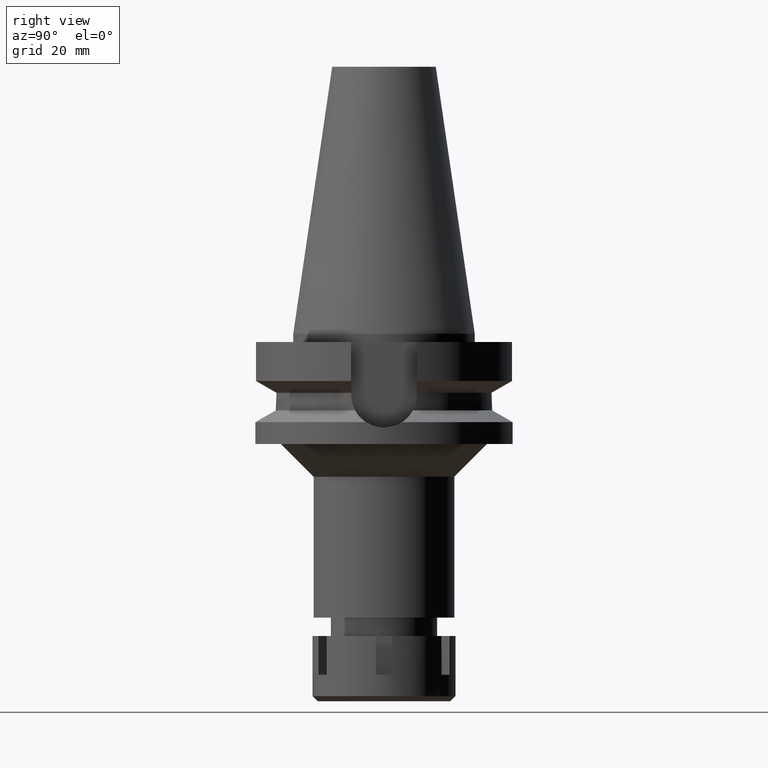
[diagram: clean part render]
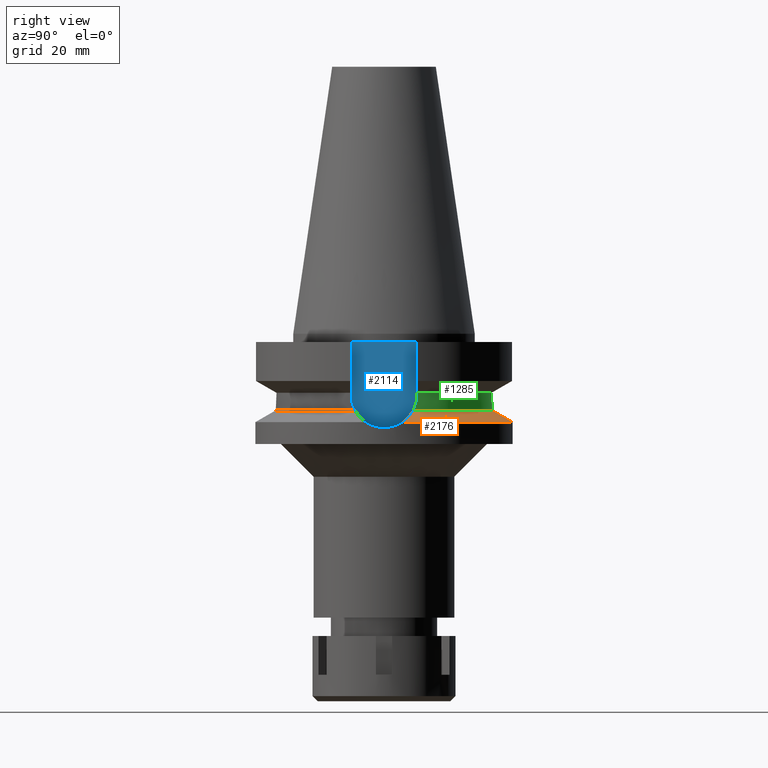
[diagram: same view with three faces highlighted in distinct colors, each labeled with its STEP entity id]
A machine part, right view with three faces highlighted in distinct colors.
Their STEP definitions:

[orange] entity #2176 — the highlighted conical surface has half-angle 60 deg.
#49 = CARTESIAN_POINT ( 'NONE',  ( 28.33576190365653602, 6.118952920167563647, -20.18367862166498128 ) ) ;
#53 = EDGE_CURVE ( 'NONE', #3149, #1249, #1803, .T. ) ;
#98 = CARTESIAN_POINT ( 'NONE',  ( -27.80186762477991280, 6.340377823589463446, -19.91138290903389674 ) ) ;
#107 = CARTESIAN_POINT ( 'NONE',  ( 26.57774612723526886, 6.789747863962931618, -19.28470094419398251 ) ) ;
#332 = EDGE_CURVE ( 'NONE', #1718, #3149, #2211, .T. ) ;
#333 = CARTESIAN_POINT ( 'NONE',  ( -26.79449840290805795, 6.719479771365198140, -19.39575631949134760 ) ) ;
#351 = CARTESIAN_POINT ( 'NONE',  ( -29.08039899030497466, 5.770905817290205242, -20.56470933253821443 ) ) ;
#356 = CARTESIAN_POINT ( 'NONE',  ( 27.17312161670360737, 6.579079804469921910, -19.58936385155902116 ) ) ;
#372 = CARTESIAN_POINT ( 'NONE',  ( 27.47007354294532888, 6.468969421279594734, -19.74117607088250637 ) ) ;
#384 = CARTESIAN_POINT ( 'NONE',  ( -31.17899877608999759, 4.485536235554000051, -21.63449434733000132 ) ) ;
#413 = CARTESIAN_POINT ( 'NONE',  ( 26.07031456688196869, 6.949820554499762437, -19.02442821806057793 ) ) ;
#608 = CARTESIAN_POINT ( 'NONE',  ( -27.56759267384783740, 6.431641194127356798, -19.79151494877947215 ) ) ;
#670 = CARTESIAN_POINT ( 'NONE',  ( 0.0000000000000000000, 31.50000000000000000, -21.63449434733000132 ) ) ;
#678 = CARTESIAN_POINT ( 'NONE',  ( 27.55500421879584039, 6.436577756468227385, -19.78457255022186700 ) ) ;
#699 = AXIS2_PLACEMENT_3D ( 'NONE', #2291, #3087, #1401 ) ;
#728 = DIRECTION ( 'NONE',  ( -0.9898094849552905306, 0.1423979757318985240, 0.0000000000000000000 ) ) ;
#775 = DIRECTION ( 'NONE',  ( 0.0000000000000000000, 0.0000000000000000000, -1.000000000000000000 ) ) ;
#827 = DIRECTION ( 'NONE',  ( 0.0000000000000000000, -1.000000000000000000, 0.0000000000000000000 ) ) ;
#864 = DIRECTION ( 'NONE',  ( 0.0000000000000000000, 1.000000000000000000, 0.0000000000000000000 ) ) ;
#896 = CARTESIAN_POINT ( 'NONE',  ( 27.64236843396722776, 6.402998594508449770, -19.82921396242459977 ) ) ;
#911 = CARTESIAN_POINT ( 'NONE',  ( -26.19531547329091481, 6.915459947307001976, -19.08864711216948251 ) ) ;
#920 = CARTESIAN_POINT ( 'NONE',  ( 27.50572643252157334, 6.455404868141973118, -19.75939378760664411 ) ) ;
#935 = ORIENTED_EDGE ( 'NONE', *, *, #2064, .F. ) ;
#954 = CARTESIAN_POINT ( 'NONE',  ( 27.72878252125778431, 6.369052005182277654, -19.87337822774047424 ) ) ;
#996 = VERTEX_POINT ( 'NONE', #670 ) ;
#1058 = ORIENTED_EDGE ( 'NONE', *, *, #1101, .T. ) ;
#1101 = EDGE_CURVE ( 'NONE', #3222, #1249, #3304, .T. ) ;
#1160 = CIRCLE ( 'NONE', #2115, 31.50000000000001421 ) ;
#1173 = CARTESIAN_POINT ( 'NONE',  ( -29.92556320744147058, 5.316957789776223464, -20.99587040959849915 ) ) ;
#1176 = CARTESIAN_POINT ( 'NONE',  ( 25.53175183775000079, 7.097862220092999941, -18.74774300138999905 ) ) ;
#1177 = CARTESIAN_POINT ( 'NONE',  ( 27.52873794657156736, 6.446629276227584526, -19.77115154444355838 ) ) ;
#1228 = CARTESIAN_POINT ( 'NONE',  ( -27.46559892626379451, 6.470389083415211573, -19.73931484843593154 ) ) ;
#1231 = ORIENTED_EDGE ( 'NONE', *, *, #1933, .F. ) ;
#1249 = VERTEX_POINT ( 'NONE', #2183 ) ;
#1401 = DIRECTION ( 'NONE',  ( 0.0000000000000000000, 1.000000000000000000, 0.0000000000000000000 ) ) ;
#1441 = DIRECTION ( 'NONE',  ( 0.0000000000000000000, 0.0000000000000000000, 1.000000000000000000 ) ) ;
#1502 = CARTESIAN_POINT ( 'NONE',  ( -30.86112095437446001, 4.726700172098827757, -21.47266466809871943 ) ) ;
#1692 = FACE_OUTER_BOUND ( 'NONE', #3246, .T. ) ;
#1718 = VERTEX_POINT ( 'NONE', #2918 ) ;
#1776 = CARTESIAN_POINT ( 'NONE',  ( -29.29923135089809350, 5.659886606404718634, -20.67639207655642508 ) ) ;
#1803 = CIRCLE ( 'NONE', #2812, 26.50000000000000000 ) ;
#1933 = EDGE_CURVE ( 'NONE', #3222, #996, #1160, .T. ) ;
#1950 = ORIENTED_EDGE ( 'NONE', *, *, #53, .F. ) ;
#2013 = AXIS2_PLACEMENT_3D ( 'NONE', #3431, #2261, #827 ) ;
#2035 = CARTESIAN_POINT ( 'NONE',  ( 27.51997238758606557, 6.449975439386931519, -19.76667286072096985 ) ) ;
#2064 = EDGE_CURVE ( 'NONE', #996, #1718, #3237, .T. ) ;
#2073 = CARTESIAN_POINT ( 'NONE',  ( 30.47180014825964278, 5.022065660879547089, -21.27446379697471102 ) ) ;
#2091 = CARTESIAN_POINT ( 'NONE',  ( 31.17899877608999759, 4.485536235554000051, -21.63449434733000132 ) ) ;
#2115 = AXIS2_PLACEMENT_3D ( 'NONE', #3306, #775, #728 ) ;
#2176 = ADVANCED_FACE ( 'NONE', ( #1692 ), #3608, .T. ) ;
#2183 = CARTESIAN_POINT ( 'NONE',  ( -25.53175183775000079, 7.097862220092999941, -18.74774300138999905 ) ) ;
#2211 = B_SPLINE_CURVE_WITH_KNOTS ( 'NONE', 3,
 ( #2091, #2073, #3436, #49, #3191, #954, #896, #678, #1177, #2035, #920, #372, #2644, #356, #107, #413, #2320 ),
 .UNSPECIFIED., .F., .F.,
 ( 4, 2, 2, 1, 2, 2, 1, 1, 2, 4 ),
 ( 0.0000000000000000000, 0.4999999999999951150, 0.6249999999999935607, 0.6562499999999933387, 0.6640624999999938938, 0.6679687499999940048, 0.6718749999999942268, 0.6874999999999946709, 0.7499999999999962252, 1.000000000000000000 ),
 .UNSPECIFIED. ) ;
#2261 = DIRECTION ( 'NONE',  ( 0.0000000000000000000, 0.0000000000000000000, -1.000000000000000000 ) ) ;
#2291 = CARTESIAN_POINT ( 'NONE',  ( 0.0000000000000000000, 0.0000000000000000000, -21.63449434733000132 ) ) ;
#2315 = CARTESIAN_POINT ( 'NONE',  ( -25.53175183775000079, 7.097862220092999941, -18.74774300138999905 ) ) ;
#2320 = CARTESIAN_POINT ( 'NONE',  ( 25.53175183775000079, 7.097862220092999941, -18.74774300138999905 ) ) ;
#2372 = CARTESIAN_POINT ( 'NONE',  ( -27.39725008733112332, 6.496136476950510996, -19.70433075545637891 ) ) ;
#2600 = ORIENTED_EDGE ( 'NONE', *, *, #332, .F. ) ;
#2638 = CARTESIAN_POINT ( 'NONE',  ( -28.37664392056703733, 6.100223205339371901, -20.20526077228979389 ) ) ;
#2644 = CARTESIAN_POINT ( 'NONE',  ( 27.31953336650986230, 6.525749808424447629, -19.66424084977510844 ) ) ;
#2812 = AXIS2_PLACEMENT_3D ( 'NONE', #3128, #1441, #864 ) ;
#2862 = CARTESIAN_POINT ( 'NONE',  ( -27.36173902296902583, 6.509397576646960282, -19.68615276734225716 ) ) ;
#2881 = CARTESIAN_POINT ( 'NONE',  ( -29.72262444886788657, 5.432525444494295641, -20.89238680110177881 ) ) ;
#2918 = CARTESIAN_POINT ( 'NONE',  ( 31.17899877608999759, 4.485536235554000051, -21.63449434733000132 ) ) ;
#3087 = DIRECTION ( 'NONE',  ( 0.0000000000000000000, 0.0000000000000000000, -1.000000000000000000 ) ) ;
#3128 = CARTESIAN_POINT ( 'NONE',  ( 0.0000000000000000000, 0.0000000000000000000, -18.74774300138999905 ) ) ;
#3138 = CARTESIAN_POINT ( 'NONE',  ( -31.17899877608999759, 4.485536235554000051, -21.63449434733000132 ) ) ;
#3149 = VERTEX_POINT ( 'NONE', #1176 ) ;
#3191 = CARTESIAN_POINT ( 'NONE',  ( 28.07139846120139026, 6.232128727978550664, -20.04849952511425215 ) ) ;
#3222 = VERTEX_POINT ( 'NONE', #3138 ) ;
#3237 = CIRCLE ( 'NONE', #699, 31.50000000000000000 ) ;
#3246 = EDGE_LOOP ( 'NONE', ( #1950, #2600, #935, #1231, #1058 ) ) ;
#3304 = B_SPLINE_CURVE_WITH_KNOTS ( 'NONE', 3,
 ( #384, #1502, #3454, #1173, #2881, #1776, #351, #3414, #2638, #3490, #98, #608, #1228, #2372, #2862, #333, #911, #2315 ),
 .UNSPECIFIED., .F., .F.,
 ( 4, 2, 2, 2, 2, 1, 1, 2, 2, 4 ),
 ( 0.0000000000000000000, 0.2499999999999970579, 0.3749999999999948375, 0.4999999999999925615, 0.6249999999999903411, 0.6874999999999892308, 0.7187499999999890088, 0.7343749999999896749, 0.7499999999999904521, 1.000000000000000000 ),
 .UNSPECIFIED. ) ;
#3306 = CARTESIAN_POINT ( 'NONE',  ( 0.0000000000000000000, 0.0000000000000000000, -21.63449434733000132 ) ) ;
#3414 = CARTESIAN_POINT ( 'NONE',  ( -28.61883714100519782, 5.991211994617476222, -20.32900284882830277 ) ) ;
#3431 = CARTESIAN_POINT ( 'NONE',  ( 0.0000000000000000000, 0.0000000000000000000, -20.19111867435999841 ) ) ;
#3436 = CARTESIAN_POINT ( 'NONE',  ( 29.60893256843363019, 5.537338110139335079, -20.83455730871934009 ) ) ;
#3454 = CARTESIAN_POINT ( 'NONE',  ( -30.50800601667560130, 4.966106917569513612, -21.29277997376089004 ) ) ;
#3490 = CARTESIAN_POINT ( 'NONE',  ( -27.99630131452716952, 6.260814675578851407, -20.01081440545673829 ) ) ;
#3608 = CONICAL_SURFACE ( 'NONE', #2013, 29.00000000000000000, 1.047197551196400456 ) ;

[blue] entity #2114 — the highlighted planar face has unit normal (1, 0, 0).
#189 = ORIENTED_EDGE ( 'NONE', *, *, #2267, .F. ) ;
#279 = FACE_OUTER_BOUND ( 'NONE', #1671, .T. ) ;
#292 = VECTOR ( 'NONE', #2262, 1000.000000000000000 ) ;
#334 = DIRECTION ( 'NONE',  ( 0.0000000000000000000, 1.000000000000000000, 0.0000000000000000000 ) ) ;
#412 = CARTESIAN_POINT ( 'NONE',  ( 22.50000000000000000, -8.050000000000000711, -14.94999999999999929 ) ) ;
#543 = CARTESIAN_POINT ( 'NONE',  ( 22.50000000000000000, 8.050000000000000711, -2.000000000000000000 ) ) ;
#588 = VERTEX_POINT ( 'NONE', #2760 ) ;
#760 = VECTOR ( 'NONE', #984, 1000.000000000000000 ) ;
#843 = LINE ( 'NONE', #1085, #292 ) ;
#893 = CARTESIAN_POINT ( 'NONE',  ( 22.50000000000000000, 0.0000000000000000000, 0.0000000000000000000 ) ) ;
#933 = DIRECTION ( 'NONE',  ( 0.0000000000000000000, 1.000000000000000000, 0.0000000000000000000 ) ) ;
#984 = DIRECTION ( 'NONE',  ( 0.0000000000000000000, 0.0000000000000000000, 1.000000000000000000 ) ) ;
#1009 = EDGE_CURVE ( 'NONE', #2184, #3305, #3522, .T. ) ;
#1085 = CARTESIAN_POINT ( 'NONE',  ( 22.50000000000000000, 8.050000000000000711, -2.000000000000000000 ) ) ;
#1107 = ORIENTED_EDGE ( 'NONE', *, *, #3569, .T. ) ;
#1384 = CARTESIAN_POINT ( 'NONE',  ( 22.50000000000000000, 8.050000000000000711, -14.94999999999999929 ) ) ;
#1434 = PLANE ( 'NONE',  #1537 ) ;
#1484 = ORIENTED_EDGE ( 'NONE', *, *, #1009, .F. ) ;
#1537 = AXIS2_PLACEMENT_3D ( 'NONE', #893, #2571, #334 ) ;
#1671 = EDGE_LOOP ( 'NONE', ( #189, #1484, #1991, #1107 ) ) ;
#1938 = AXIS2_PLACEMENT_3D ( 'NONE', #3473, #2927, #933 ) ;
#1991 = ORIENTED_EDGE ( 'NONE', *, *, #2077, .F. ) ;
#2015 = LINE ( 'NONE', #3152, #3130 ) ;
#2077 = EDGE_CURVE ( 'NONE', #3063, #2184, #2015, .T. ) ;
#2114 = ADVANCED_FACE ( 'NONE', ( #279 ), #1434, .T. ) ;
#2184 = VERTEX_POINT ( 'NONE', #1384 ) ;
#2262 = DIRECTION ( 'NONE',  ( 0.0000000000000000000, -1.000000000000000000, 0.0000000000000000000 ) ) ;
#2267 = EDGE_CURVE ( 'NONE', #3305, #588, #3170, .T. ) ;
#2571 = DIRECTION ( 'NONE',  ( 1.000000000000000000, 0.0000000000000000000, 0.0000000000000000000 ) ) ;
#2760 = CARTESIAN_POINT ( 'NONE',  ( 22.50000000000000000, -8.050000000000000711, -2.000000000000000000 ) ) ;
#2927 = DIRECTION ( 'NONE',  ( -1.000000000000000000, 0.0000000000000000000, 0.0000000000000000000 ) ) ;
#3063 = VERTEX_POINT ( 'NONE', #543 ) ;
#3103 = DIRECTION ( 'NONE',  ( 0.0000000000000000000, 0.0000000000000000000, -1.000000000000000000 ) ) ;
#3130 = VECTOR ( 'NONE', #3103, 1000.000000000000000 ) ;
#3152 = CARTESIAN_POINT ( 'NONE',  ( 22.50000000000000000, 8.050000000000000711, -2.000000000000000000 ) ) ;
#3170 = LINE ( 'NONE', #3521, #760 ) ;
#3305 = VERTEX_POINT ( 'NONE', #412 ) ;
#3473 = CARTESIAN_POINT ( 'NONE',  ( 22.50000000000000000, 0.0000000000000000000, -14.94999999999999929 ) ) ;
#3521 = CARTESIAN_POINT ( 'NONE',  ( 22.50000000000000000, -8.050000000000000711, -14.94999999999999929 ) ) ;
#3522 = CIRCLE ( 'NONE', #1938, 8.050000000000000711 ) ;
#3569 = EDGE_CURVE ( 'NONE', #3063, #588, #843, .T. ) ;

[green] entity #1285 — the highlighted cylindrical surface (partial cylindrical patch) has radius 26.5 mm, axis along (0, 0, -1).
#53 = EDGE_CURVE ( 'NONE', #3149, #1249, #1803, .T. ) ;
#73 = CARTESIAN_POINT ( 'NONE',  ( 25.24772266958000344, 8.050000000000000711, -14.94999999999999929 ) ) ;
#154 = LINE ( 'NONE', #1900, #2663 ) ;
#217 = ORIENTED_EDGE ( 'NONE', *, *, #1719, .F. ) ;
#229 = VERTEX_POINT ( 'NONE', #3055 ) ;
#241 = VERTEX_POINT ( 'NONE', #2233 ) ;
#296 = DIRECTION ( 'NONE',  ( -0.9527442516822307583, 0.3037735849057093818, 0.0000000000000000000 ) ) ;
#393 = EDGE_CURVE ( 'NONE', #3149, #241, #1178, .T. ) ;
#411 = CARTESIAN_POINT ( 'NONE',  ( -25.29454954118293486, 7.902007388341837135, -16.48871296864345126 ) ) ;
#573 = EDGE_LOOP ( 'NONE', ( #1339, #2915, #2087, #2225, #217, #1864 ) ) ;
#623 = AXIS2_PLACEMENT_3D ( 'NONE', #1687, #3392, #296 ) ;
#707 = FACE_OUTER_BOUND ( 'NONE', #573, .T. ) ;
#710 = CARTESIAN_POINT ( 'NONE',  ( -25.31206084004277912, 7.845614529401188975, -16.75329855850928951 ) ) ;
#776 = CARTESIAN_POINT ( 'NONE',  ( -25.24772266958000344, 8.050000000000000711, -14.94999999999999929 ) ) ;
#864 = DIRECTION ( 'NONE',  ( 0.0000000000000000000, 1.000000000000000000, 0.0000000000000000000 ) ) ;
#939 = CARTESIAN_POINT ( 'NONE',  ( 25.34384339545047737, 7.742469616379023201, -17.15619314850085431 ) ) ;
#989 = CARTESIAN_POINT ( 'NONE',  ( 25.24772266958000344, 8.049999999999997158, -15.58981081119148193 ) ) ;
#1065 = DIRECTION ( 'NONE',  ( 0.0000000000000000000, -1.000000000000000000, 0.0000000000000000000 ) ) ;
#1176 = CARTESIAN_POINT ( 'NONE',  ( 25.53175183775000079, 7.097862220092999941, -18.74774300138999905 ) ) ;
#1178 = B_SPLINE_CURVE_WITH_KNOTS ( 'NONE', 3,
 ( #1195, #2336, #3462, #3176, #2901, #3481, #939, #2920, #2411, #1575, #2700, #3241, #989, #1869 ),
 .UNSPECIFIED., .F., .F.,
 ( 4, 2, 2, 1, 1, 2, 2, 4 ),
 ( 0.0000000000000000000, 0.2500000000000011657, 0.3750000000000028311, 0.4375000000000037748, 0.4687500000000027756, 0.4843750000000024425, 0.5000000000000019984, 1.000000000000000000 ),
 .UNSPECIFIED. ) ;
#1193 = CARTESIAN_POINT ( 'NONE',  ( -25.43789037938648789, 7.435491690473122084, -18.11672414062482162 ) ) ;
#1195 = CARTESIAN_POINT ( 'NONE',  ( 25.53175183775000079, 7.097862220092999941, -18.74774300138999905 ) ) ;
#1207 = DIRECTION ( 'NONE',  ( 2.938998355542993232E-06, -9.217771712380975888E-06, 0.9999999999531975492 ) ) ;
#1248 = EDGE_CURVE ( 'NONE', #2481, #3438, #154, .T. ) ;
#1249 = VERTEX_POINT ( 'NONE', #2183 ) ;
#1250 = CARTESIAN_POINT ( 'NONE',  ( -25.31954826170013106, 7.821386849068008296, -16.85495274079638151 ) ) ;
#1270 = CARTESIAN_POINT ( 'NONE',  ( -25.31652402624243337, 7.831177078179816675, -16.81429685340951963 ) ) ;
#1285 = ADVANCED_FACE ( 'NONE', ( #707 ), #1842, .T. ) ;
#1339 = ORIENTED_EDGE ( 'NONE', *, *, #2569, .T. ) ;
#1441 = DIRECTION ( 'NONE',  ( 0.0000000000000000000, 0.0000000000000000000, 1.000000000000000000 ) ) ;
#1478 = LINE ( 'NONE', #73, #2737 ) ;
#1550 = CARTESIAN_POINT ( 'NONE',  ( -25.25396625246039406, 8.030896711162544221, -15.59378553528499012 ) ) ;
#1573 = CARTESIAN_POINT ( 'NONE',  ( -25.32122245610177913, 7.815962707354302985, -16.87706809356129156 ) ) ;
#1575 = CARTESIAN_POINT ( 'NONE',  ( 25.32546474064105979, 7.802209548897429237, -16.93201787082077203 ) ) ;
#1687 = CARTESIAN_POINT ( 'NONE',  ( 0.0000000000000000000, 1.065333950388000029E-14, -14.45225699861000024 ) ) ;
#1719 = EDGE_CURVE ( 'NONE', #3438, #1249, #2701, .T. ) ;
#1803 = CIRCLE ( 'NONE', #2812, 26.50000000000000000 ) ;
#1842 = CYLINDRICAL_SURFACE ( 'NONE', #2074, 26.50000000000000000 ) ;
#1862 = DIRECTION ( 'NONE',  ( 0.0000000000000000000, 0.0000000000000000000, -1.000000000000000000 ) ) ;
#1864 = ORIENTED_EDGE ( 'NONE', *, *, #1248, .F. ) ;
#1869 = CARTESIAN_POINT ( 'NONE',  ( 25.24772266958000344, 8.050000000000000711, -14.94999999999999929 ) ) ;
#1900 = CARTESIAN_POINT ( 'NONE',  ( -25.24772216459999896, 8.050001583793001458, -14.45224489703000081 ) ) ;
#2074 = AXIS2_PLACEMENT_3D ( 'NONE', #3601, #1862, #1065 ) ;
#2087 = ORIENTED_EDGE ( 'NONE', *, *, #393, .F. ) ;
#2183 = CARTESIAN_POINT ( 'NONE',  ( -25.53175183775000079, 7.097862220092999941, -18.74774300138999905 ) ) ;
#2221 = CARTESIAN_POINT ( 'NONE',  ( -25.24772216459999896, 8.050001583793001458, -14.45224489703000081 ) ) ;
#2225 = ORIENTED_EDGE ( 'NONE', *, *, #53, .T. ) ;
#2233 = CARTESIAN_POINT ( 'NONE',  ( 25.24772266958000344, 8.050000000000000711, -14.94999999999999929 ) ) ;
#2336 = CARTESIAN_POINT ( 'NONE',  ( 25.48480653792046624, 7.266729367422243513, -18.43213561436577308 ) ) ;
#2392 = CARTESIAN_POINT ( 'NONE',  ( -25.36818832151804770, 7.663695285312788208, -17.48840541837621743 ) ) ;
#2409 = CARTESIAN_POINT ( 'NONE',  ( -25.24772266958000344, 8.050000000000000711, -14.94999999999999929 ) ) ;
#2411 = CARTESIAN_POINT ( 'NONE',  ( 25.32840589093493122, 7.792665650289850809, -16.96921537928767165 ) ) ;
#2481 = VERTEX_POINT ( 'NONE', #2221 ) ;
#2501 = DIRECTION ( 'NONE',  ( -1.014509826136022322E-06, -3.181872982650076202E-06, -0.9999999999944233497 ) ) ;
#2569 = EDGE_CURVE ( 'NONE', #2481, #229, #3463, .T. ) ;
#2663 = VECTOR ( 'NONE', #2501, 999.9999999999998863 ) ;
#2677 = CARTESIAN_POINT ( 'NONE',  ( -25.27269700110156592, 7.971767412704498845, -16.08147680839852356 ) ) ;
#2700 = CARTESIAN_POINT ( 'NONE',  ( 25.32415423298265722, 7.806459850231466824, -16.91522840168126152 ) ) ;
#2701 = B_SPLINE_CURVE_WITH_KNOTS ( 'NONE', 3,
 ( #2409, #3223, #1550, #2677, #3525, #411, #3239, #710, #1270, #1250, #1573, #2392, #1193, #2974 ),
 .UNSPECIFIED., .F., .F.,
 ( 4, 2, 2, 1, 1, 2, 2, 4 ),
 ( 0.0000000000000000000, 0.2499999999999944489, 0.3749999999999909517, 0.4374999999999905076, 0.4687499999999915623, 0.4843749999999910072, 0.4999999999999904521, 1.000000000000000000 ),
 .UNSPECIFIED. ) ;
#2737 = VECTOR ( 'NONE', #1207, 1000.000000000000000 ) ;
#2812 = AXIS2_PLACEMENT_3D ( 'NONE', #3128, #1441, #864 ) ;
#2885 = EDGE_CURVE ( 'NONE', #241, #229, #1478, .T. ) ;
#2901 = CARTESIAN_POINT ( 'NONE',  ( 25.37569567372544910, 7.637836187999782922, -17.49781209657168191 ) ) ;
#2915 = ORIENTED_EDGE ( 'NONE', *, *, #2885, .F. ) ;
#2920 = CARTESIAN_POINT ( 'NONE',  ( 25.33288843118665312, 7.778112047386424699, -17.02510900864709598 ) ) ;
#2974 = CARTESIAN_POINT ( 'NONE',  ( -25.53175183775000079, 7.097862220092999941, -18.74774300138999905 ) ) ;
#3055 = CARTESIAN_POINT ( 'NONE',  ( 25.24772413234000012, 8.049995412241999659, -14.45229205507000003 ) ) ;
#3128 = CARTESIAN_POINT ( 'NONE',  ( 0.0000000000000000000, 0.0000000000000000000, -18.74774300138999905 ) ) ;
#3149 = VERTEX_POINT ( 'NONE', #1176 ) ;
#3176 = CARTESIAN_POINT ( 'NONE',  ( 25.39161474380841099, 7.584925632688388042, -17.65165132602217213 ) ) ;
#3223 = CARTESIAN_POINT ( 'NONE',  ( -25.24772266958000699, 8.050000000000018474, -15.27000344021189804 ) ) ;
#3239 = CARTESIAN_POINT ( 'NONE',  ( -25.30215890781840926, 7.877570599500793413, -16.61088255776599709 ) ) ;
#3241 = CARTESIAN_POINT ( 'NONE',  ( 25.27267991477270215, 7.973333693868347005, -16.24500092433180498 ) ) ;
#3392 = DIRECTION ( 'NONE',  ( 0.0000000000000000000, 0.0000000000000000000, -1.000000000000000000 ) ) ;
#3438 = VERTEX_POINT ( 'NONE', #776 ) ;
#3462 = CARTESIAN_POINT ( 'NONE',  ( 25.44390410195637742, 7.408324269918076688, -18.11690676764972352 ) ) ;
#3463 = CIRCLE ( 'NONE', #623, 26.50000000000000711 ) ;
#3481 = CARTESIAN_POINT ( 'NONE',  ( 25.35408314255054663, 7.708964442631086378, -17.26963666352914117 ) ) ;
#3525 = CARTESIAN_POINT ( 'NONE',  ( -25.28050147970205330, 7.946982733727907977, -16.24437200639999901 ) ) ;
#3601 = CARTESIAN_POINT ( 'NONE',  ( 0.0000000000000000000, 2.115822274886999895E-14, 72.76999999999999602 ) ) ;